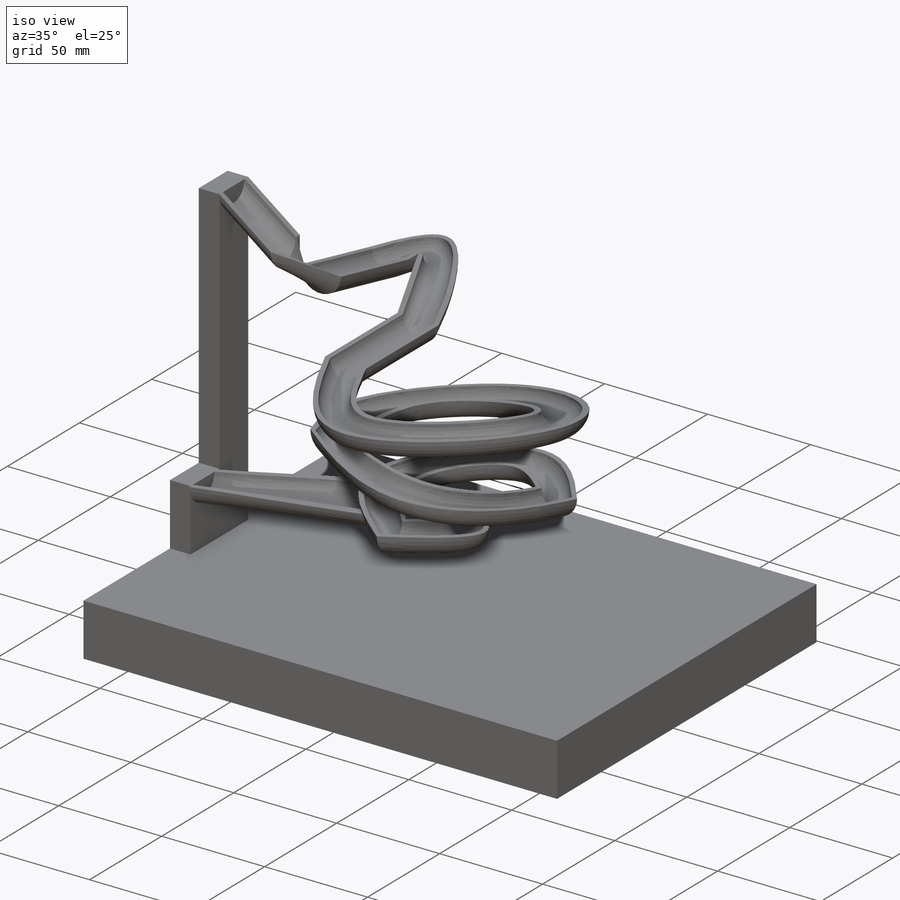
[diagram: iso view]
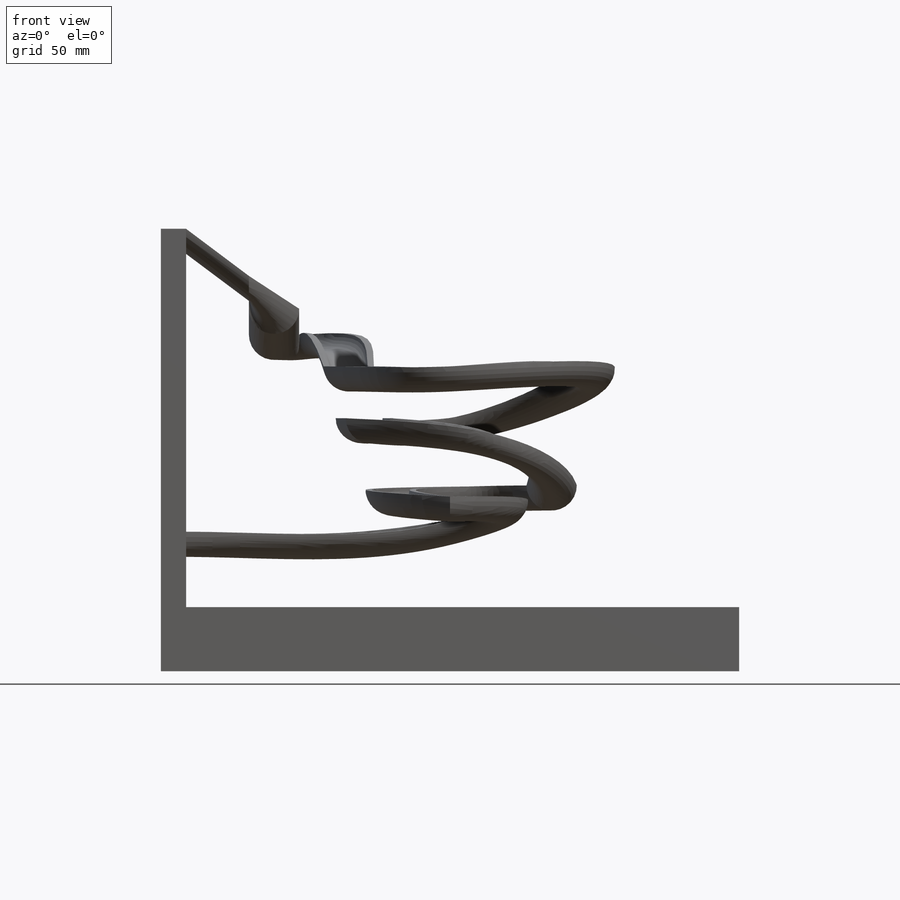
[diagram: front view]
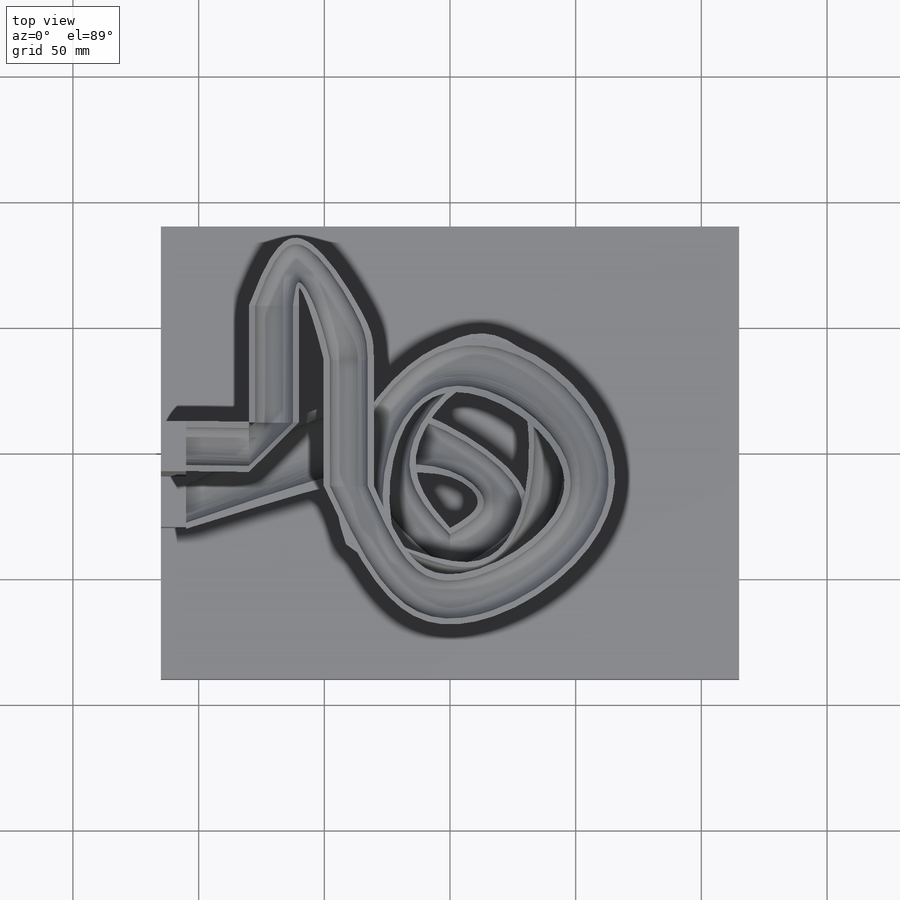
[diagram: top view]
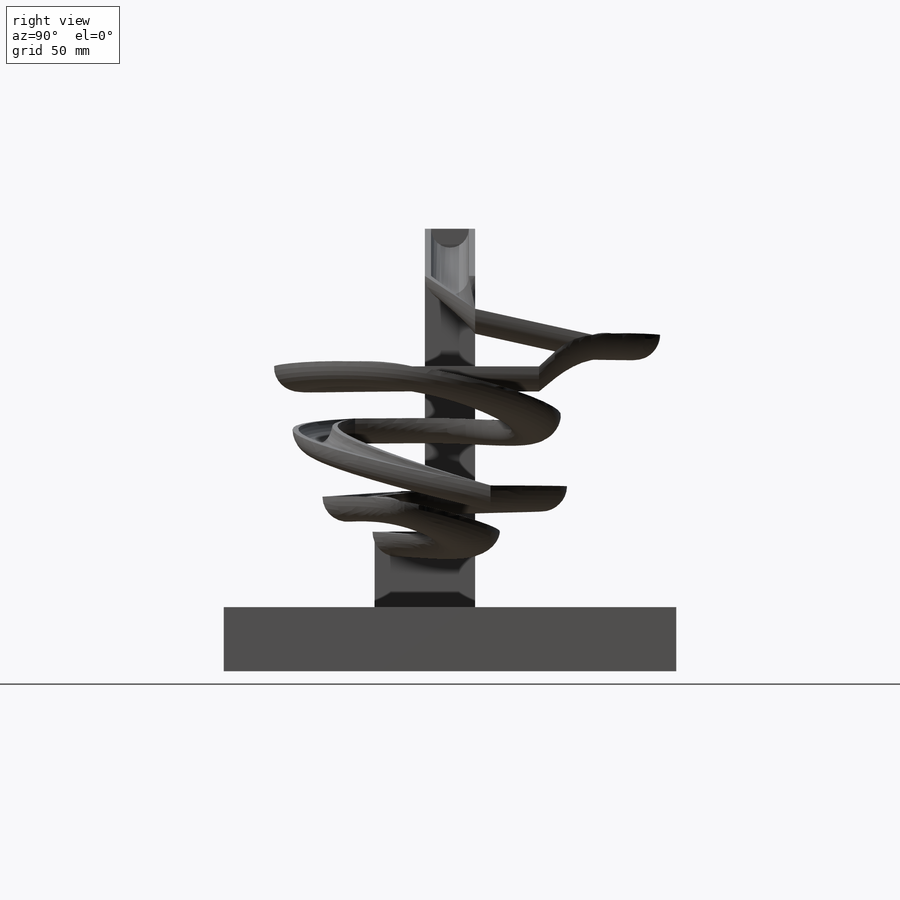
[diagram: right view]
SOLIDWORKS PART (.sldprt)
format: sldprt  version: not decoded by parser v0  size: 890,368 bytes
history: native  units: mm
features: sketch x27, material x19, sweep x6, extrude x4, plane x1 (+9 scaffold rows collapsed)
feature tree (66):
  scaffold x9  (default folders/planes/origin — collapsed)
  material  "材質 <未指定>"
  material  "上基準面"
  material  "右基準面"
  material  "平面2"
  material  "平面3"
  material  "平面4"
  material  "平面6"
  material  "平面8"
  material  "平面9"
  material  "平面10"
  material  "平面11"
  material  "平面12"
  material  "平面13"
  material  "平面14"
  material  "平面15"
  material  "平面16"
  material  "平面17"
  material  "平面18"
  material  "平面19"
  plane  "前基準面"
  sketch  "草圖1"  dims[D1=230.0mm D2=180.0mm]
  extrude  "填料-伸長1"  Depth=25.5mm
  sketch  "草圖10"  dims[D1=176.0mm D2=55.5mm D3=15.0mm D4=20.0mm D5=20.0mm D6=10.0mm D7=7.5mm]
  extrude  "填料-伸長3"  Depth=10mm
  sketch  "草圖11"  dims[D2=10.0mm D3=7.5mm D1=15.0mm]
  sketch  "草圖12"  dims[D1=10.0mm D2=7.5mm]
  sketch  "草圖13"
  sweep  "掃出1"
  sketch  "草圖15"  dims[D1=7.5mm D2=10.0mm D3=2.5mm D4=2.5mm]
  sketch  "草圖17"
  sketch  "草圖18"  dims[D1=0.0mm]
  extrude  "掃出2"  [1 undecoded]
  sketch  "草圖19"  dims[c1.D3=7.5mm c1.D4=10.0mm c1.D5=6.0mm c2.D4=10.0mm c2.D1=2.5mm c2.D2=2.5mm]
  sketch  "草圖23"  dims[c1.D1=10.0mm c1.D3=~7.504831mm c1.D5=10.0mm c2.D1=~0.019514mm c2.D2=2.5mm c2.D4=~2.496375mm c3.D1=0.0deg c3.D5=~173.500154deg c4.D1=0.0mm]
  sketch  "草圖24"
  sketch  "草圖25"  dims[D1=7.5mm D2=10.0mm D3=2.5mm D4=2.5mm]
  sweep  "疊層拉伸8"
  sketch  "草圖27"
  sketch  "草圖28"  dims[D1=0.0mm]
  extrude  "掃出3"  [1 undecoded]
  sketch  "草圖29"  dims[D3=7.5mm D4=10.0mm D1=2.5mm D2=2.5mm]
  sketch  "草圖30"  dims[D3=7.5mm D4=10.0mm D1=2.5mm D2=2.5mm]
  sketch  "草圖31"
  sketch  "草圖32"
  sketch  "草圖33"
  sketch  "草圖34"
  sketch  "草圖35"
  sweep  "疊層拉伸9"
  sweep  "疊層拉伸10"
  sketch  "草圖38"  dims[D1=7.5mm D2=10.0mm D3=2.5mm D4=2.5mm]
  sketch  "草圖39"  dims[D1=0.0mm]
  sketch  "草圖40"
  sketch  "草圖41"
  sketch  "草圖43"  dims[c1.D1=7.5mm c1.D2=10.0mm c2.D1=7.5mm c2.D2=10.0mm c3.D1=7.5mm c3.D2=10.0mm c3.D3=2.5mm c3.D4=2.5mm c4.D3=2.5mm c4.D4=2.5mm c5.D3=2.5mm c5.D4=2.5mm]
  sweep  "疊層拉伸11"
  sketch  "草圖44"  dims[D1=0.0mm]
  sweep  "疊層拉伸17"
decode coverage: 18 of 37 modeling features carry decoded parameters
note: ~ marks probable driven/reference dimensions
note: 2 parameter values undecoded
summary: profile_refs inferred from adjacent sketches, not decoded
note: suppression state not decoded; provenance and decode notes live in map.json
